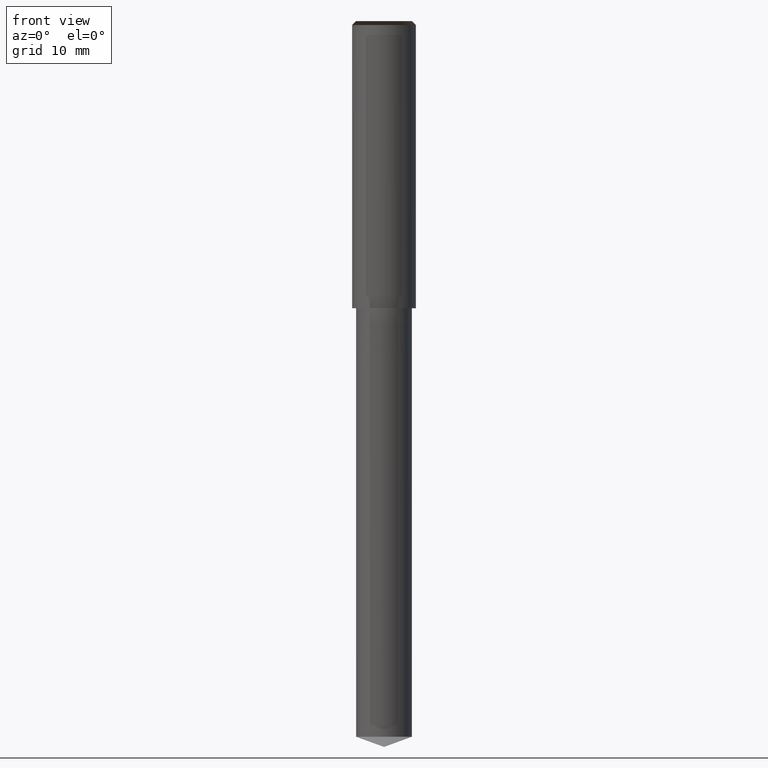
[diagram: clean part render]
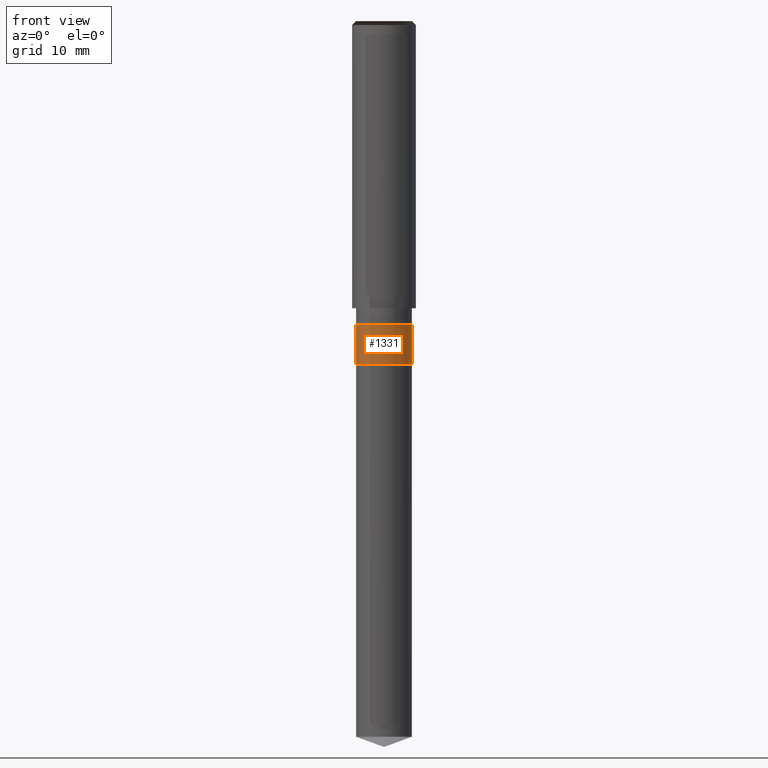
[diagram: same view with one face highlighted and labeled with its STEP entity id]
A machine part, front view. The second image highlights one B-rep face of the part: STEP entity #1331.
In plain terms, the highlighted face is a freeform B-spline surface patch.
Its self-contained STEP definition (entity closure, byte-faithful):
#998=CARTESIAN_POINT('',(3.5,0.0,-7.0));
#1002=CARTESIAN_POINT('',(-3.5,0.0,-7.0));
#1007=CARTESIAN_POINT('',(-3.5,-3.5,-7.0));
#1008=CARTESIAN_POINT('',(0.0,-3.5,-7.0));
#1009=CARTESIAN_POINT('',(3.5,-3.5,-7.0));
#1010=CARTESIAN_POINT('',(3.5,0.0,-2.0));
#1014=CARTESIAN_POINT('',(-3.5,0.0,-2.0));
#1036=CARTESIAN_POINT('',(-3.5,-3.5,-2.0));
#1037=CARTESIAN_POINT('',(0.0,-3.5,-2.0));
#1038=CARTESIAN_POINT('',(3.5,-3.5,-2.0));
#1312=(
BOUNDED_SURFACE()
B_SPLINE_SURFACE(1,2,(
(#1002,#1007,#1008,#1009,#998),
(#1014,#1036,#1037,#1038,#1010)
), .UNSPECIFIED.,.F.,.F.,.F.)
B_SPLINE_SURFACE_WITH_KNOTS((2,2),(3,2,3),(
0.0,1.0),(
0.0,0.5,1.0), .UNSPECIFIED.)
GEOMETRIC_REPRESENTATION_ITEM()
RATIONAL_B_SPLINE_SURFACE(((1.0,0.707106781187,1.0,0.707106781187,1.0),
(1.0,0.707106781187,1.0,0.707106781187,1.0)
))
REPRESENTATION_ITEM('')
SURFACE()
);
#1313=(
BOUNDED_CURVE()
B_SPLINE_CURVE(2,(#998,#1009,#1008,#1007,#1002),.UNSPECIFIED.,.F.,.F.)
B_SPLINE_CURVE_WITH_KNOTS((3,2,3),
(0.0,0.5,1.0),.UNSPECIFIED.)
CURVE()
GEOMETRIC_REPRESENTATION_ITEM()
RATIONAL_B_SPLINE_CURVE((1.0,0.707106781187,1.0,0.707106781187,1.0))
REPRESENTATION_ITEM('')
);
#1314=(
BOUNDED_CURVE()
B_SPLINE_CURVE(1,(#1002,#1014),.UNSPECIFIED.,.F.,.F.)
B_SPLINE_CURVE_WITH_KNOTS((2,2),
(0.0,1.0),.UNSPECIFIED.)
CURVE()
GEOMETRIC_REPRESENTATION_ITEM()
RATIONAL_B_SPLINE_CURVE((1.0,1.0))
REPRESENTATION_ITEM('')
);
#1315=(
BOUNDED_CURVE()
B_SPLINE_CURVE(2,(#1014,#1036,#1037,#1038,#1010),.UNSPECIFIED.,.F.,.F.)
B_SPLINE_CURVE_WITH_KNOTS((3,2,3),
(0.0,0.5,1.0),.UNSPECIFIED.)
CURVE()
GEOMETRIC_REPRESENTATION_ITEM()
RATIONAL_B_SPLINE_CURVE((1.0,0.707106781187,1.0,0.707106781187,1.0))
REPRESENTATION_ITEM('')
);
#1316=(
BOUNDED_CURVE()
B_SPLINE_CURVE(1,(#1010,#998),.UNSPECIFIED.,.F.,.F.)
B_SPLINE_CURVE_WITH_KNOTS((2,2),
(0.0,1.0),.UNSPECIFIED.)
CURVE()
GEOMETRIC_REPRESENTATION_ITEM()
RATIONAL_B_SPLINE_CURVE((1.0,1.0))
REPRESENTATION_ITEM('')
);
#1317=VERTEX_POINT('',#998);
#1318=VERTEX_POINT('',#1002);
#1319=VERTEX_POINT('',#1010);
#1320=VERTEX_POINT('',#1014);
#1321=EDGE_CURVE('',#1317,#1318,#1313,.T.);
#1322=EDGE_CURVE('',#1318,#1320,#1314,.T.);
#1323=EDGE_CURVE('',#1320,#1319,#1315,.T.);
#1324=EDGE_CURVE('',#1319,#1317,#1316,.T.);
#1325=ORIENTED_EDGE('',*,*,#1321,.T.);
#1326=ORIENTED_EDGE('',*,*,#1322,.T.);
#1327=ORIENTED_EDGE('',*,*,#1323,.T.);
#1328=ORIENTED_EDGE('',*,*,#1324,.T.);
#1329=EDGE_LOOP('',(#1325,#1326,#1327,#1328));
#1330=FACE_OUTER_BOUND('',#1329,.T.);
#1331=ADVANCED_FACE('',(#1330),#1312,.T.);